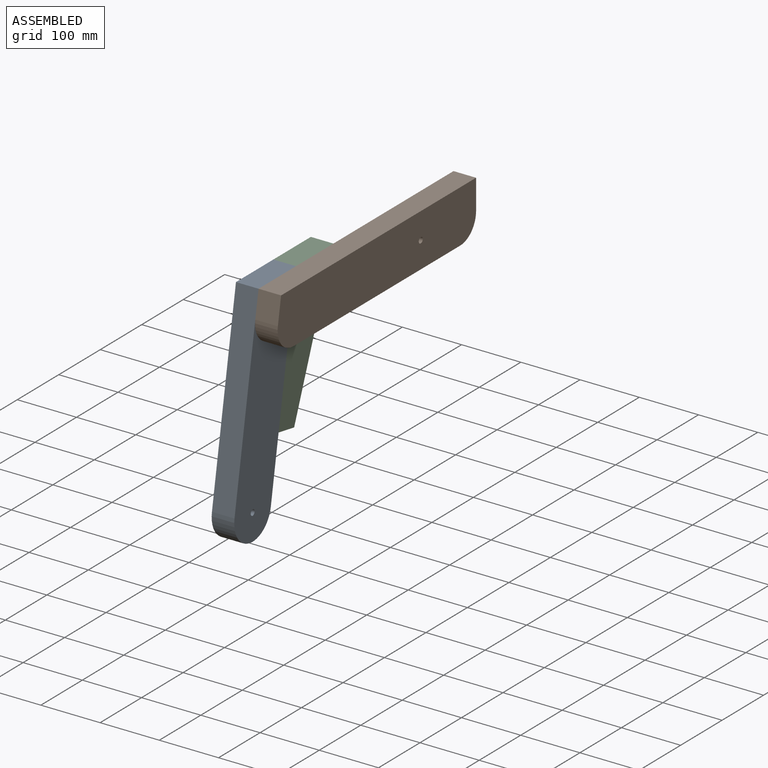
[diagram: assembled view]
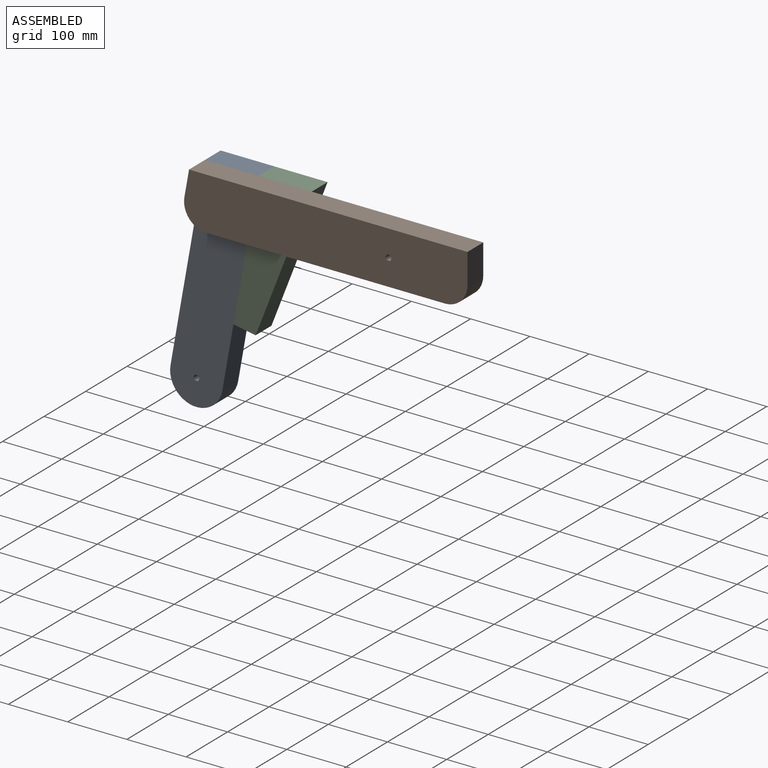
[diagram: assembled view, second angle]
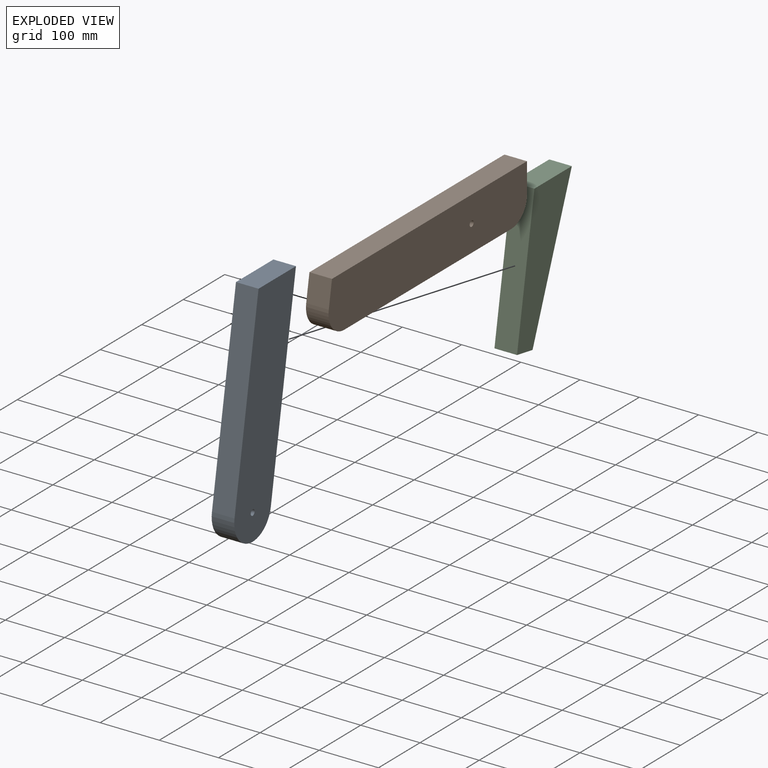
[diagram: exploded view]
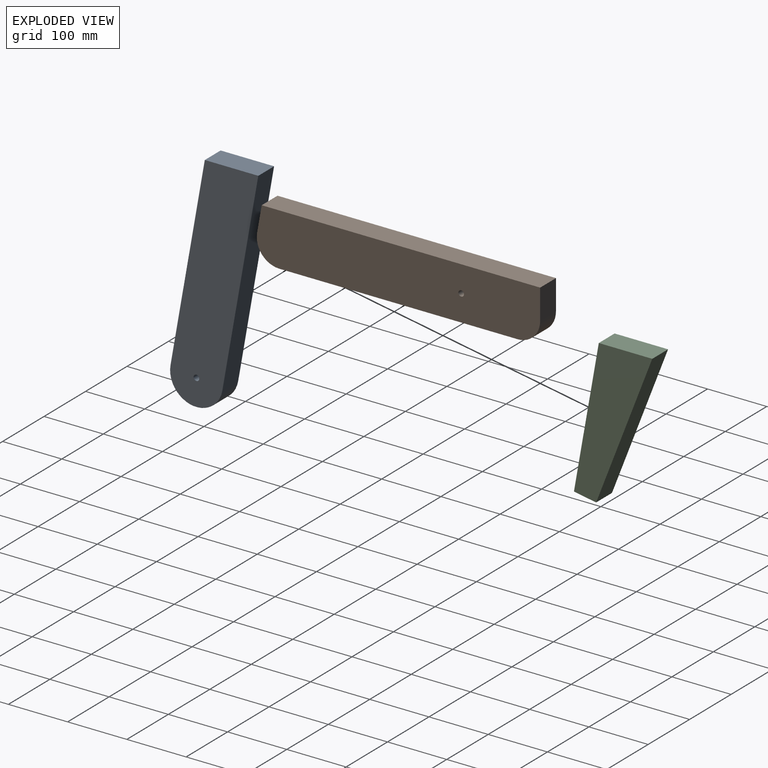
[diagram: exploded view, second angle]
ASSEMBLY  parts=3 mates=2
PART A: 7 faces, bbox 393.7x88.9x38.1 mm
  f0: plane 349.25x38.1mm, normal (0,1,0), area 13306.4mm2, adj f1,f4,f5,f6
  f1: plane 88.9x38.1mm, normal (-0.98,-0.17,0), area 3439.3mm2, adj f0,f2,f5,f6
  f2: plane 333.57x38.1mm, normal (0,-1,0), area 12709.2mm2, adj f1,f4,f5,f6
  f3: cylinder r=4.76mm len=38.1mm, axis (0,0,-1), area 1140.1mm2, adj f5,f6
  f4: cylinder r=44.45mm len=88.9mm, axis (0,0,-1), area 5320.4mm2, adj f0,f2,f5,f6
  f5: plane 393.7x88.9mm, normal (0,0,1), area 33383.9mm2, adj f0,f1,f2,f3,f4
  f6: plane 393.7x88.9mm, normal (0,0,-1), area 33383.9mm2, adj f0,f1,f2,f3,f4
PART B: 9 faces, bbox 478.5x88.9x38.1 mm
  f0: cylinder r=38.1mm len=44.72mm, axis (0,0,-1), area 2533.5mm2, adj f1,f6,f7,f8
  f1: plane 44.18x38.1mm, normal (0.98,0.17,0), area 1709.4mm2, adj f0,f2,f7,f8
  f2: plane 470.1x38.1mm, normal (0,1,0), area 17910.8mm2, adj f1,f3,f7,f8
  f3: plane 50.8x38.1mm, normal (-1,0,0), area 1935.5mm2, adj f2,f4,f7,f8
  f4: cylinder r=38.1mm len=38.1mm, axis (0,0,-1), area 2280.2mm2, adj f3,f6,f7,f8
  f5: cylinder r=4.76mm len=38.1mm, axis (0,0,-1), area 1140.1mm2, adj f7,f8
  f6: plane 402.27x38.1mm, normal (0,-1,0), area 15326.5mm2, adj f0,f4,f7,f8
  f7: plane 478.47x88.9mm, normal (0,0,1), area 41642.7mm2, adj f0,f1,f2,f3,f4,f5,f6
  f8: plane 478.47x88.9mm, normal (0,0,-1), area 41642.7mm2, adj f0,f1,f2,f3,f4,f5,f6
PART C: 6 faces, bbox 257.2x88.9x38.1 mm
  f0: plane 38.1x38.1mm, normal (1,0,0), area 1451.6mm2, adj f1,f3,f4,f5
  f1: plane 241.5x38.1mm, normal (0,1,0), area 9201.1mm2, adj f0,f2,f4,f5
  f2: plane 88.9x38.1mm, normal (-0.98,0.17,0), area 3439.3mm2, adj f1,f3,f4,f5
  f3: plane 257.18x50.8mm, normal (0.19,-0.98,0), area 9987.7mm2, adj f0,f2,f4,f5
  f4: plane 257.18x88.9mm, normal (0,0,1), area 15633.8mm2, adj f0,f1,f2,f3
  f5: plane 257.18x88.9mm, normal (0,0,-1), area 15633.8mm2, adj f0,f1,f2,f3
PLACE A rot(axis=(-0.09,0.99,-0.09),90.4deg) t=(-19.05,-30.32,-171.97)mm fixed
PLACE B rot(axis=(0.58,-0.58,-0.58),120deg) t=(57.15,189.91,0)mm
PLACE C rot(axis=(0.71,-0.06,-0.71),172.9deg) t=(19.05,24.17,-118.92)mm
MATE fastened A.f0 <-> C.f1  axis (0,0.98,-0.17) through (19.05,45.14,0)mm
MATE fastened A.f2 <-> B.f1  axis (0,-0.98,0.17) through (19.05,-45.14,0)mm
